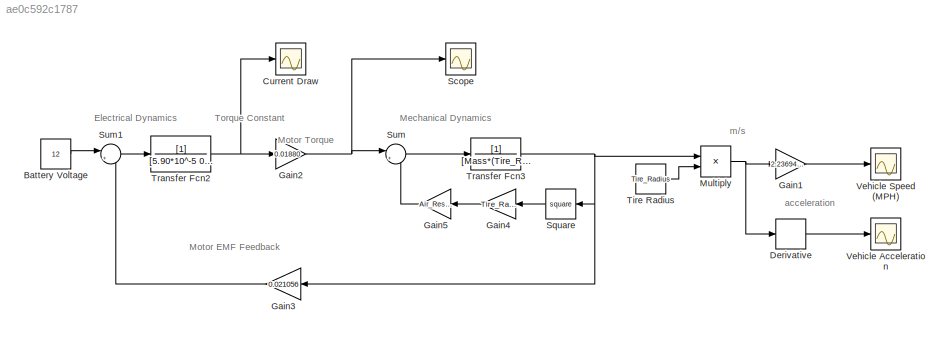
MODEL slx_ae0c592c1787
KIND model
CONFIG AbsTol = auto
CONFIG EnableMultiTasking = off
CONFIG FixedStep = auto
CONFIG MaxStep = auto
CONFIG MinStep = auto
CONFIG RelTol = 1e-3
CONFIG SampleTimeConstraint = Unconstrained
CONFIG SolverName = VariableStepAuto
CONFIG StartTime = 0.0
CONFIG StopTime = 10
WORKSPACE source: mxarray member
WORKSPACE Air_Resistance: Simulink.Parameter (value not decoded)
WORKSPACE Gear_Ratio: Simulink.Parameter (value not decoded)
WORKSPACE Mass: Simulink.Parameter (value not decoded)
WORKSPACE Num_Motors: Simulink.Parameter (value not decoded)
WORKSPACE Tire_Radius: Simulink.Parameter (value not decoded)
BLOCK [Constant] Battery Voltage
  Value = 12
BLOCK [Scope] Current Draw
  Floating = off
  NumInputPorts = 1
  Ports = [1]
  ScopeSpecificationString = Simulink.scopes.TimeScopeBlockCfg('CurrentConfiguration', extmgr.ConfigurationSet(extmgr.Configuration('Core','General UI',true),extmgr.Configuration('Core','Source UI',true),extmgr.Configuration('Sources','WiredSimulink',true,'DataLoggingVariableName','ScopeData2'),extmgr.Configuration('Visuals','Time Domain',true,'SerializedDisplays',{struct('MinYLimReal','-16.21085','MaxYLimReal','145.89768','Y...<+1752ch>
BLOCK [Derivative] Derivative
BLOCK [Gain] Gain1
  Gain = 2.23694/Gear_Ratio
BLOCK [Gain] Gain2
  Gain = 0.01880
BLOCK [Gain] Gain3
  Gain = 0.021056
BLOCK [Gain] Gain4
  Gain = Tire_Radius^3/(Gear_Ratio^2*Num_Motors^2)
BLOCK [Gain] Gain5
  Gain = Air_Resistance
BLOCK [Product] Multiply
  Ports = [2, 1]
BLOCK [Scope] Scope
  Floating = off
  NumInputPorts = 1
  Ports = [1]
  ScopeSpecificationString = Simulink.scopes.TimeScopeBlockCfg('CurrentConfiguration', extmgr.ConfigurationSet(extmgr.Configuration('Core','General UI',true),extmgr.Configuration('Core','Source UI',true),extmgr.Configuration('Sources','WiredSimulink',true,'DataLoggingVariableName','ScopeData1'),extmgr.Configuration('Visuals','Time Domain',true),extmgr.Configuration('Tools','Plot Navigation',true),extmgr.Configuration('Tools',...<+40ch>
BLOCK [Math] Square
  Operator = square
  Ports = [1, 1]
  SignedPower = on
BLOCK [Sum] Sum
  Inputs = |+-
  Ports = [2, 1]
BLOCK [Sum] Sum1
  Inputs = |+-
  Ports = [2, 1]
BLOCK [Constant] Tire Radius
  Value = Tire_Radius
BLOCK [TransferFcn] Transfer Fcn2
  Denominator = [5.90*10^-5 0.091565]
BLOCK [TransferFcn] Transfer Fcn3
  Denominator = [Mass*(Tire_Radius)^2/(Gear_Ratio^2*Num_Motors^2)+7.75E-05\n\n 8.90538*10^-5]
BLOCK [Scope] Vehicle Acceleration
  Floating = off
  NumInputPorts = 1
  Ports = [1]
  ScopeSpecificationString = Simulink.scopes.TimeScopeBlockCfg('CurrentConfiguration', extmgr.ConfigurationSet(extmgr.Configuration('Core','General UI',true),extmgr.Configuration('Core','Source UI',true),extmgr.Configuration('Sources','WiredSimulink',true,'DataLoggingVariableName','ScopeData1'),extmgr.Configuration('Visuals','Time Domain',true,'SerializedDisplays',{struct('MinYLimReal','-37.5244','MaxYLimReal','337.09806','YL...<+1403ch>
BLOCK [Scope] Vehicle Speed (MPH)
  Floating = off
  NumInputPorts = 1
  Ports = [1]
  ScopeSpecificationString = Simulink.scopes.TimeScopeBlockCfg('CurrentConfiguration', extmgr.ConfigurationSet(extmgr.Configuration('Core','General UI',true),extmgr.Configuration('Core','Source UI',true),extmgr.Configuration('Sources','WiredSimulink',true),extmgr.Configuration('Visuals','Time Domain',true,'SerializedDisplays',{struct('MinYLimReal','-2.64066','MaxYLimReal','23.76592','YLabelReal','','MinYLimMag','0.00000','Max...<+1397ch>
ANNOTATION (root): Electrical Dynamics
ANNOTATION (root): Mechanical Dynamics
ANNOTATION (root): Motor EMF Feedback
ANNOTATION (root): Motor Torque
ANNOTATION (root): Torque Constant
ANNOTATION (root): acceleration
ANNOTATION (root): m/s
LINE Battery Voltage:1 -> Sum1:1
LINE Derivative:1 -> Vehicle Acceleration:1
LINE Gain1:1 -> Vehicle Speed (MPH):1
NET Gain2:1 -> Scope:1, Sum:1
LINE Gain3:1 -> Sum1:2
LINE Gain4:1 -> Gain5:1
LINE Gain5:1 -> Sum:2
NET Multiply:1 -> Derivative:1, Gain1:1
LINE Square:1 -> Gain4:1
LINE Sum1:1 -> Transfer Fcn2:1
LINE Sum:1 -> Transfer Fcn3:1
LINE Tire Radius:1 -> Multiply:2
NET Transfer Fcn2:1 -> Current Draw:1, Gain2:1
NET Transfer Fcn3:1 -> Gain3:1, Multiply:1, Square:1
note: NET lines group one-source signal fan-out (src -> all destinations, sorted); 1:1 wires keep LINE
